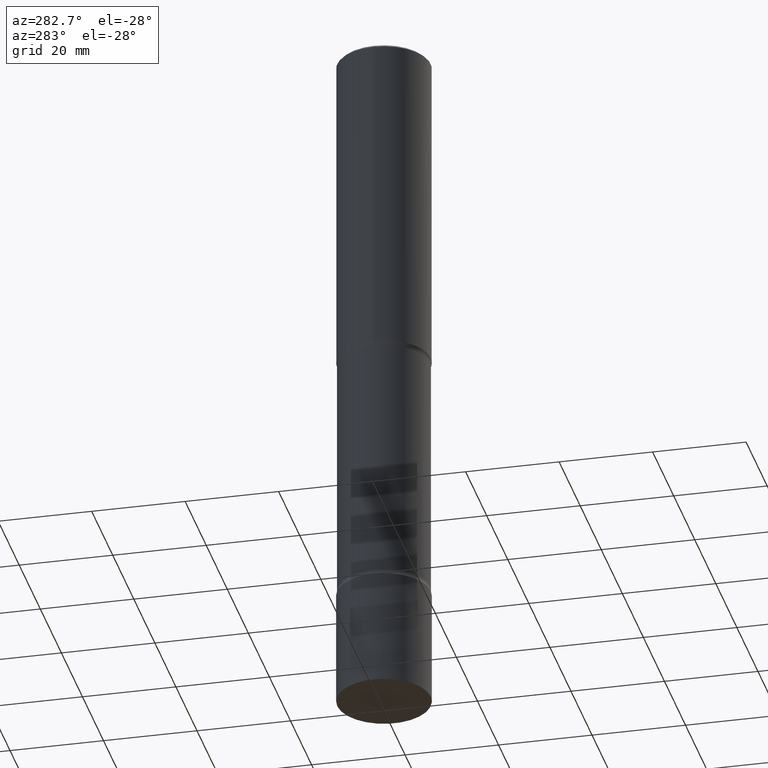
[diagram: clean part render]
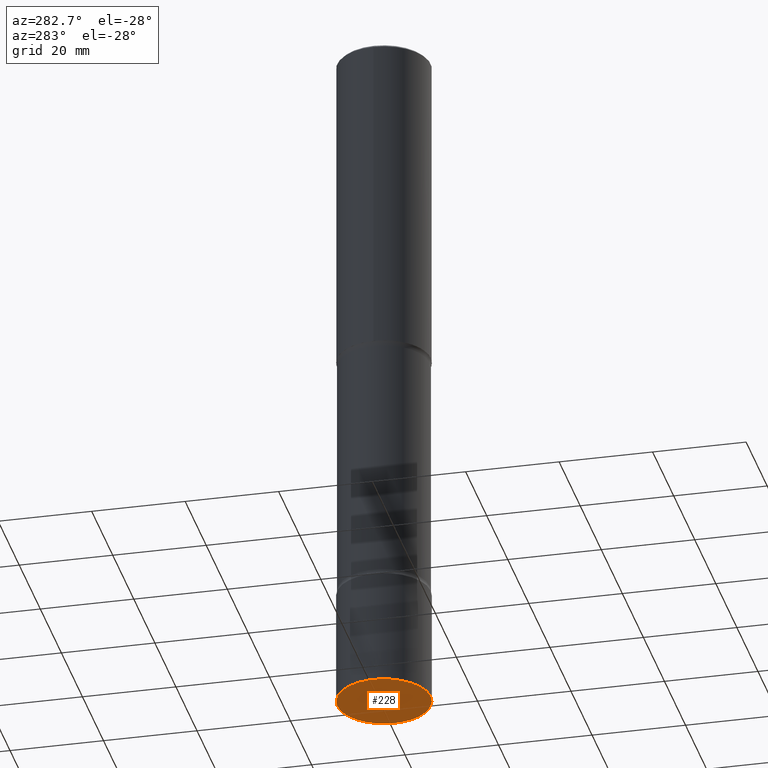
[diagram: same view with one face highlighted and labeled with its STEP entity id]
A machine part, auxiliary view. The second image highlights one B-rep face of the part: STEP entity #228.
In plain terms, the highlighted planar face has unit normal (0, -0, -1).
Its self-contained STEP definition (entity closure, byte-faithful):
#24 = CARTESIAN_POINT ( 'NONE',  ( 1.443466886683462122E-28, -2.062903499234540787E-14, -5.905499999999999972 ) ) ;
#31 = AXIS2_PLACEMENT_3D ( 'NONE', #92, #369, #413 ) ;
#45 = CARTESIAN_POINT ( 'NONE',  ( 1.443466886683462122E-28, -2.062903499234540787E-14, -5.905499999999999972 ) ) ;
#85 = AXIS2_PLACEMENT_3D ( 'NONE', #24, #454, #380 ) ;
#92 = CARTESIAN_POINT ( 'NONE',  ( 2.588755158344812931E-28, -4.227855084552603978E-15, -5.905500000000000860 ) ) ;
#132 = CIRCLE ( 'NONE', #346, 0.3937000000000000499 ) ;
#144 = EDGE_LOOP ( 'NONE', ( #268, #494 ) ) ;
#154 = CARTESIAN_POINT ( 'NONE',  ( 2.797406750687646132E-15, 0.3936999999999793998, -5.905500000000000860 ) ) ;
#155 = EDGE_CURVE ( 'NONE', #161, #455, #132, .T. ) ;
#161 = VERTEX_POINT ( 'NONE', #154 ) ;
#228 = ADVANCED_FACE ( 'NONE', ( #246 ), #294, .T. ) ;
#245 = CIRCLE ( 'NONE', #85, 0.3937000000000000499 ) ;
#246 = FACE_OUTER_BOUND ( 'NONE', #144, .T. ) ;
#268 = ORIENTED_EDGE ( 'NONE', *, *, #309, .F. ) ;
#274 = DIRECTION ( 'NONE',  ( -2.444275483334962976E-29, 3.493190245084312886E-15, 1.000000000000000000 ) ) ;
#294 = PLANE ( 'NONE',  #31 ) ;
#309 = EDGE_CURVE ( 'NONE', #455, #161, #245, .T. ) ;
#346 = AXIS2_PLACEMENT_3D ( 'NONE', #45, #274, #508 ) ;
#369 = DIRECTION ( 'NONE',  ( 2.444275483334962696E-29, -3.493190245084312886E-15, -1.000000000000000000 ) ) ;
#380 = DIRECTION ( 'NONE',  ( -6.982962677686265133E-15, -1.000000000000000000, 2.775563112689116301E-15 ) ) ;
#413 = DIRECTION ( 'NONE',  ( 6.982962677686265922E-15, 1.000000000000000000, -3.493190245084312886E-15 ) ) ;
#454 = DIRECTION ( 'NONE',  ( -2.444275483334962976E-29, 3.493190245084312886E-15, 1.000000000000000000 ) ) ;
#455 = VERTEX_POINT ( 'NONE', #500 ) ;
#494 = ORIENTED_EDGE ( 'NONE', *, *, #155, .F. ) ;
#500 = CARTESIAN_POINT ( 'NONE',  ( -2.749192406204938855E-15, -0.3937000000000206446, -5.905499999999998195 ) ) ;
#508 = DIRECTION ( 'NONE',  ( -6.982962677686265133E-15, -1.000000000000000000, 2.775563112689116301E-15 ) ) ;